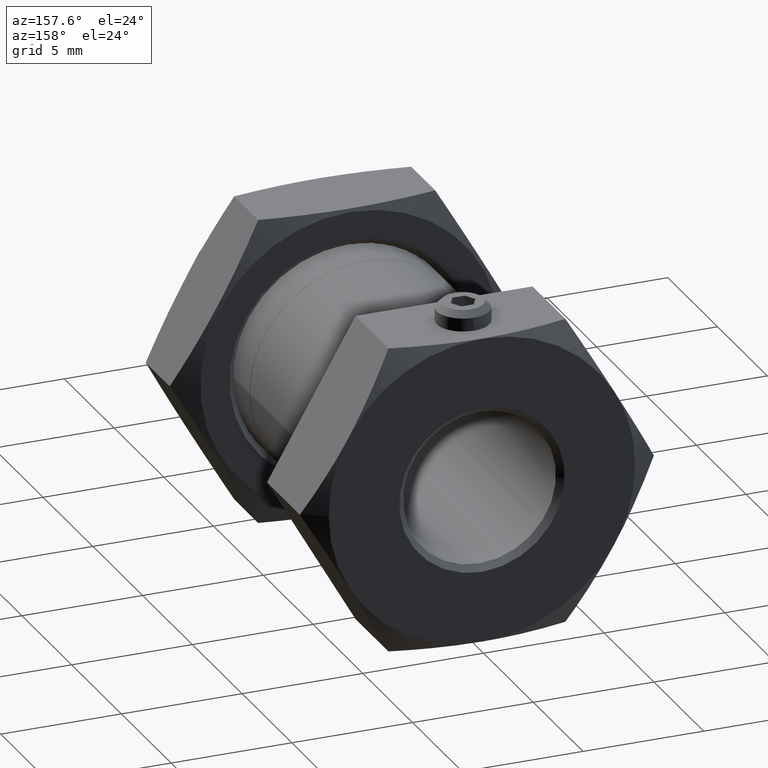
[diagram: clean part render]
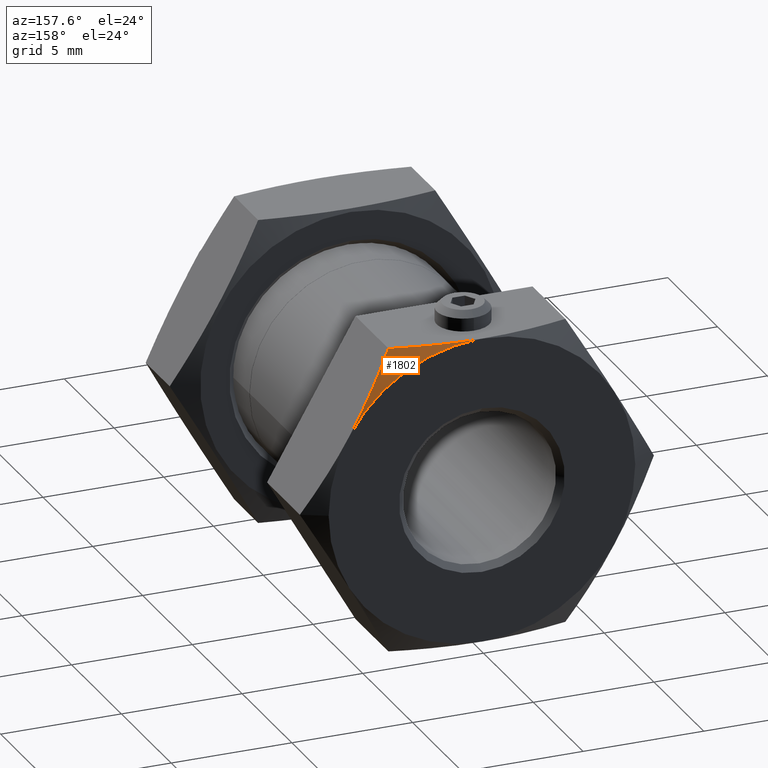
[diagram: same view with one face highlighted and labeled with its STEP entity id]
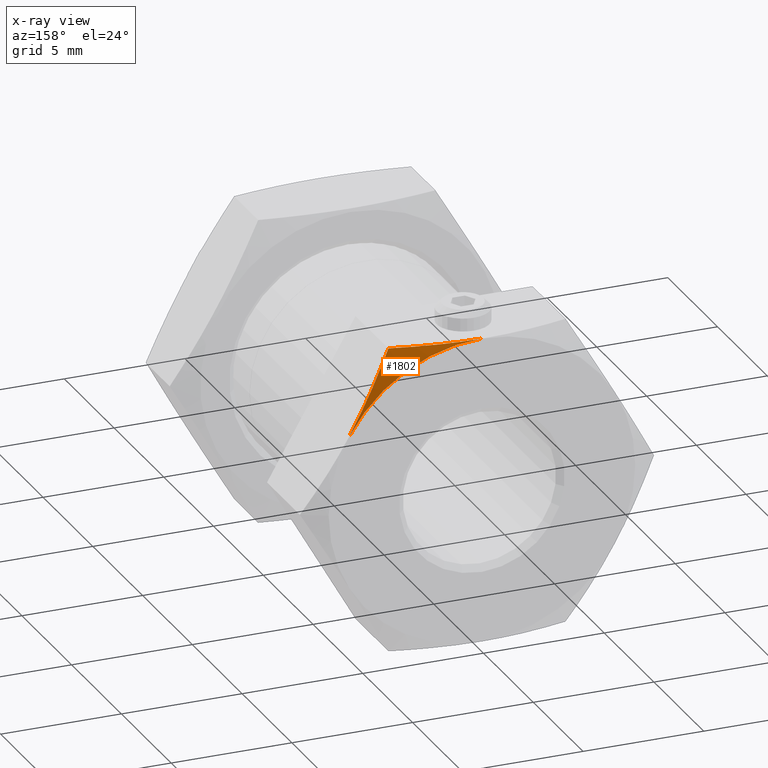
[diagram: x-ray of the same camera — body ghosted, the highlighted face saturated]
A machine part, auxiliary view. The second image highlights one B-rep face of the part: STEP entity #1802.
The next image is the same camera in x-ray: the body ghosted, the highlighted face saturated — about 0% of this face is hidden behind the body in this view.
In plain terms, the highlighted conical surface has half-angle 62.655 deg.
Its self-contained STEP definition (entity closure, byte-faithful):
#1418 = CARTESIAN_POINT ( 'NONE',  ( 3.666174209354121900, 9.334499999999998500, 6.349999999999997000 ) ) ;
#1545 = CARTESIAN_POINT ( 'NONE',  ( 3.666174209354121900, 9.334499999999998500, 6.349999999999997000 ) ) ;
#1546 = CARTESIAN_POINT ( 'NONE',  ( 3.070962758042368200, 9.488400292150910100, 6.350000000000001400 ) ) ;
#1556 = B_SPLINE_CURVE_WITH_KNOTS ( 'NONE', 3,
 ( #1564, #1563, #1562, #1561, #1546, #1545 ),
 .UNSPECIFIED., .F., .F.,
 ( 4, 2, 4 ),
 ( 0.01014610368364118400, 0.01199938597512277000, 0.01385266826660435500 ),
 .UNSPECIFIED. ) ;
#1561 = CARTESIAN_POINT ( 'NONE',  ( 2.469031071195675300, 9.616122389116130300, 6.350000000000001400 ) ) ;
#1562 = CARTESIAN_POINT ( 'NONE',  ( 1.245196951800786200, 9.793771976553994600, 6.350000000000002300 ) ) ;
#1563 = CARTESIAN_POINT ( 'NONE',  ( 0.6192551042601061000, 9.842500000000001100, 6.350000000000001400 ) ) ;
#1564 = CARTESIAN_POINT ( 'NONE',  ( 1.109547544918986300E-031, 9.842500000000001100, 6.349999999999999600 ) ) ;
#1580 = CARTESIAN_POINT ( 'NONE',  ( 5.499261314031182100, 9.842500000000001100, 3.175000000000005200 ) ) ;
#1581 = CARTESIAN_POINT ( 'NONE',  ( 5.189811135943791100, 9.842500000000002900, 3.710983430858602700 ) ) ;
#1582 = CARTESIAN_POINT ( 'NONE',  ( 4.882573211054870300, 9.794908471864712100, 4.243135126778240000 ) ) ;
#1583 = CARTESIAN_POINT ( 'NONE',  ( 4.271861192160951500, 9.618755270073615200, 5.300919372295468600 ) ) ;
#1584 = CARTESIAN_POINT ( 'NONE',  ( 3.968360353075407200, 9.490768955176081400, 5.826598245731418000 ) ) ;
#1585 = CARTESIAN_POINT ( 'NONE',  ( 3.666174209354121900, 9.334499999999998500, 6.349999999999997000 ) ) ;
#1591 = B_SPLINE_CURVE_WITH_KNOTS ( 'NONE', 3,
 ( #1585, #1584, #1583, #1582, #1581, #1580 ),
 .UNSPECIFIED., .F., .F.,
 ( 4, 2, 4 ),
 ( 2.354762064932408300E-007, 0.001848964344561623400, 0.003697693212916753800 ),
 .UNSPECIFIED. ) ;
#1610 = CARTESIAN_POINT ( 'NONE',  ( 1.109547544918986300E-031, 9.842500000000001100, 6.349999999999999600 ) ) ;
#1628 = CARTESIAN_POINT ( 'NONE',  ( 5.499261314031182100, 9.842500000000001100, 3.175000000000005200 ) ) ;
#1802 = ADVANCED_FACE ( 'NONE', ( #2490 ), #2451, .T. ) ;
#1826 = ORIENTED_EDGE ( 'NONE', *, *, #1927, .F. ) ;
#1833 = ORIENTED_EDGE ( 'NONE', *, *, #2104, .T. ) ;
#1888 = EDGE_LOOP ( 'NONE', ( #1892, #1833, #1826 ) ) ;
#1892 = ORIENTED_EDGE ( 'NONE', *, *, #1947, .T. ) ;
#1927 = EDGE_CURVE ( 'NONE', #2102, #2105, #2743, .T. ) ;
#1947 = EDGE_CURVE ( 'NONE', #2102, #2079, #1556, .T. ) ;
#2079 = VERTEX_POINT ( 'NONE', #1418 ) ;
#2102 = VERTEX_POINT ( 'NONE', #1610 ) ;
#2104 = EDGE_CURVE ( 'NONE', #2079, #2105, #1591, .T. ) ;
#2105 = VERTEX_POINT ( 'NONE', #1628 ) ;
#2448 = DIRECTION ( 'NONE',  ( 1.000000000000000000, 0.0000000000000000000, 0.0000000000000000000 ) ) ;
#2449 = DIRECTION ( 'NONE',  ( 1.321861932418191900E-016, -1.000000000000000000, 0.0000000000000000000 ) ) ;
#2450 = AXIS2_PLACEMENT_3D ( 'NONE', #2528, #2449, #2448 ) ;
#2451 = CONICAL_SURFACE ( 'NONE', #2450, 6.349999999999999600, 1.093540295016933100 ) ;
#2490 = FACE_OUTER_BOUND ( 'NONE', #1888, .T. ) ;
#2528 = CARTESIAN_POINT ( 'NONE',  ( 1.109547544918986300E-031, 9.842500000000001100, 0.0000000000000000000 ) ) ;
#2739 = DIRECTION ( 'NONE',  ( 0.0000000000000000000, 0.0000000000000000000, 1.000000000000000000 ) ) ;
#2740 = DIRECTION ( 'NONE',  ( 0.0000000000000000000, 1.000000000000000000, 0.0000000000000000000 ) ) ;
#2741 = CARTESIAN_POINT ( 'NONE',  ( 1.109547544918986300E-031, 9.842500000000001100, 1.623161223827038900E-015 ) ) ;
#2742 = AXIS2_PLACEMENT_3D ( 'NONE', #2741, #2740, #2739 ) ;
#2743 = CIRCLE ( 'NONE', #2742, 6.349999999999999600 ) ;